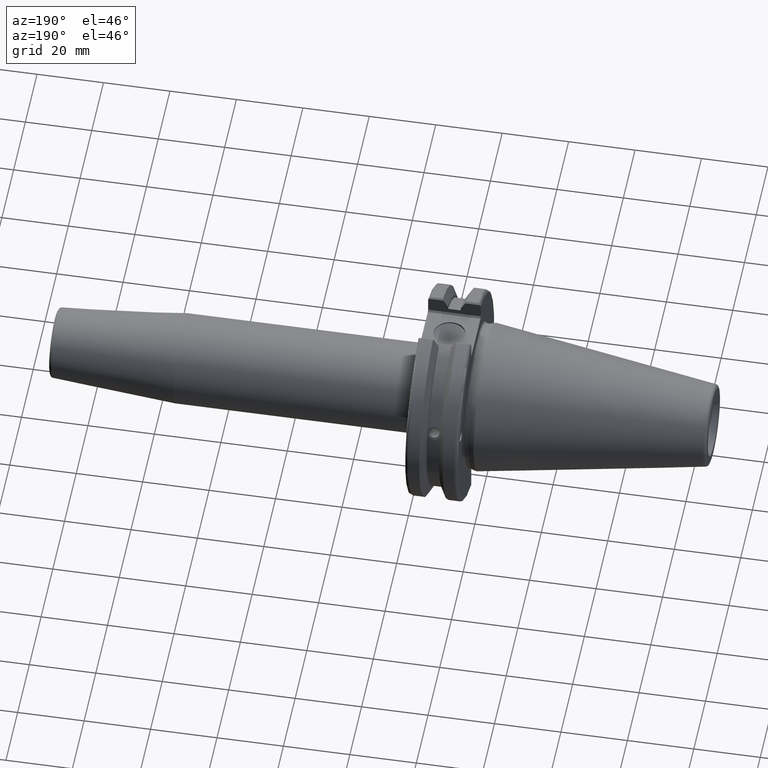
[diagram: clean part render]
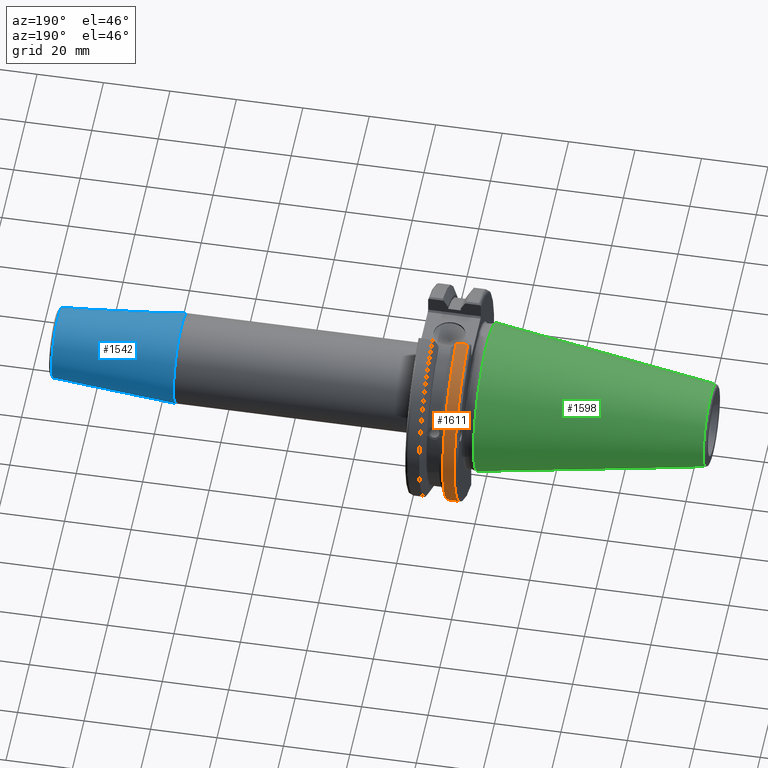
[diagram: same view with three faces highlighted in distinct colors, each labeled with its STEP entity id]
A machine part, auxiliary view with three faces highlighted in distinct colors.
Their STEP definitions:

[orange] entity #1611 — the highlighted cylindrical surface (partial cylindrical patch) has radius 31.75 mm, axis along (1, 0, 0).
#170=CYLINDRICAL_SURFACE('',#1810,31.75);
#250=FACE_OUTER_BOUND('',#357,.T.);
#357=EDGE_LOOP('',(#1450,#1451,#1452,#1453));
#452=LINE('',#3011,#550);
#467=LINE('',#3064,#565);
#550=VECTOR('',#2191,10.);
#565=VECTOR('',#2250,10.);
#608=CIRCLE('',#1742,31.75);
#628=CIRCLE('',#1786,31.75);
#735=VERTEX_POINT('',#2738);
#736=VERTEX_POINT('',#2742);
#787=VERTEX_POINT('',#2985);
#788=VERTEX_POINT('',#2994);
#923=EDGE_CURVE('',#735,#736,#608,.T.);
#1000=EDGE_CURVE('',#787,#788,#628,.T.);
#1003=EDGE_CURVE('',#788,#735,#452,.T.);
#1027=EDGE_CURVE('',#736,#787,#467,.T.);
#1450=ORIENTED_EDGE('',*,*,#1000,.F.);
#1451=ORIENTED_EDGE('',*,*,#1027,.F.);
#1452=ORIENTED_EDGE('',*,*,#923,.F.);
#1453=ORIENTED_EDGE('',*,*,#1003,.F.);
#1611=ADVANCED_FACE('',(#250),#170,.T.);
#1742=AXIS2_PLACEMENT_3D('',#2743,#2065,#2066);
#1786=AXIS2_PLACEMENT_3D('',#2995,#2187,#2188);
#1810=AXIS2_PLACEMENT_3D('',#3065,#2251,#2252);
#2065=DIRECTION('center_axis',(1.,0.,0.));
#2066=DIRECTION('ref_axis',(0.,0.,-1.));
#2187=DIRECTION('center_axis',(-1.,0.,0.));
#2188=DIRECTION('ref_axis',(0.,1.,1.60812264967664E-16));
#2191=DIRECTION('',(1.,0.,0.));
#2250=DIRECTION('',(-1.,0.,0.));
#2251=DIRECTION('center_axis',(1.,0.,0.));
#2252=DIRECTION('ref_axis',(0.,1.,0.));
#2738=CARTESIAN_POINT('',(7.60793323092436,8.67204822802685,-30.5427254764662));
#2742=CARTESIAN_POINT('',(7.60793323092436,8.67204822802685,30.5427254764662));
#2743=CARTESIAN_POINT('Origin',(7.60793323092436,0.,0.));
#2985=CARTESIAN_POINT('',(4.175,8.67204822802685,30.5427254764662));
#2994=CARTESIAN_POINT('',(4.175,8.67204822802685,-30.5427254764662));
#2995=CARTESIAN_POINT('Origin',(4.175,0.,0.));
#3011=CARTESIAN_POINT('',(5.39146661546218,8.67204822802685,-30.5427254764662));
#3064=CARTESIAN_POINT('',(5.39146661546218,8.67204822802685,30.5427254764662));
#3065=CARTESIAN_POINT('Origin',(5.39146661546218,0.,0.));

[blue] entity #1542 — the highlighted conical surface has half-angle 4.5 deg.
#181=FACE_OUTER_BOUND('',#275,.T.);
#275=EDGE_LOOP('',(#1066,#1067,#1068,#1069,#1070));
#379=LINE('',#2340,#477);
#477=VECTOR('',#1874,12.);
#575=CIRCLE('',#1661,10.5725268420749);
#576=CIRCLE('',#1662,10.5725268420749);
#578=CIRCLE('',#1666,13.5);
#653=VERTEX_POINT('',#2330);
#654=VERTEX_POINT('',#2332);
#656=VERTEX_POINT('',#2339);
#814=EDGE_CURVE('',#653,#654,#575,.T.);
#815=EDGE_CURVE('',#654,#653,#576,.T.);
#817=EDGE_CURVE('',#654,#656,#379,.T.);
#818=EDGE_CURVE('',#656,#656,#578,.T.);
#1066=ORIENTED_EDGE('',*,*,#815,.F.);
#1067=ORIENTED_EDGE('',*,*,#817,.T.);
#1068=ORIENTED_EDGE('',*,*,#818,.T.);
#1069=ORIENTED_EDGE('',*,*,#817,.F.);
#1070=ORIENTED_EDGE('',*,*,#814,.F.);
#1523=CONICAL_SURFACE('',#1665,12.,0.0785398163397448);
#1542=ADVANCED_FACE('',(#181),#1523,.T.);
#1661=AXIS2_PLACEMENT_3D('',#2333,#1864,#1865);
#1662=AXIS2_PLACEMENT_3D('',#2334,#1866,#1867);
#1665=AXIS2_PLACEMENT_3D('',#2338,#1872,#1873);
#1666=AXIS2_PLACEMENT_3D('',#2341,#1875,#1876);
#1864=DIRECTION('center_axis',(1.,0.,0.));
#1865=DIRECTION('ref_axis',(0.,-1.,3.06161699786838E-17));
#1866=DIRECTION('center_axis',(1.,0.,0.));
#1867=DIRECTION('ref_axis',(0.,-1.,3.06161699786838E-17));
#1872=DIRECTION('center_axis',(-1.,0.,0.));
#1873=DIRECTION('ref_axis',(0.,1.,0.));
#1874=DIRECTION('',(-0.996917333733128,-0.0784590957278449,-9.6084680447101E-18));
#1875=DIRECTION('center_axis',(1.,0.,0.));
#1876=DIRECTION('ref_axis',(0.,0.,-1.));
#2330=CARTESIAN_POINT('',(129.078459095728,-1.29476111560465E-15,10.5725268420749));
#2332=CARTESIAN_POINT('',(129.078459095728,-10.5725268420749,-1.29476111560465E-15));
#2333=CARTESIAN_POINT('Origin',(129.078459095728,0.,-1.61845139450582E-15));
#2334=CARTESIAN_POINT('Origin',(129.078459095728,0.,-1.61845139450582E-15));
#2338=CARTESIAN_POINT('Origin',(110.940692895738,0.,0.));
#2339=CARTESIAN_POINT('',(91.8813857914758,-13.5,-1.65327317884893E-15));
#2340=CARTESIAN_POINT('',(110.940692895738,-12.,-1.46957615897682E-15));
#2341=CARTESIAN_POINT('Origin',(91.8813857914758,0.,0.));

[green] entity #1598 — the highlighted conical surface has half-angle 8.297 deg.
#237=FACE_OUTER_BOUND('',#344,.T.);
#344=EDGE_LOOP('',(#1389,#1390,#1391,#1392,#1393));
#453=LINE('',#3026,#551);
#551=VECTOR('',#2210,17.2484375);
#629=CIRCLE('',#1789,12.3966635780937);
#630=CIRCLE('',#1790,12.3966635780937);
#634=CIRCLE('',#1796,22.225);
#789=VERTEX_POINT('',#3013);
#790=VERTEX_POINT('',#3014);
#793=VERTEX_POINT('',#3024);
#1004=EDGE_CURVE('',#789,#790,#629,.T.);
#1005=EDGE_CURVE('',#790,#789,#630,.T.);
#1009=EDGE_CURVE('',#793,#793,#634,.T.);
#1010=EDGE_CURVE('',#793,#790,#453,.T.);
#1389=ORIENTED_EDGE('',*,*,#1009,.F.);
#1390=ORIENTED_EDGE('',*,*,#1010,.T.);
#1391=ORIENTED_EDGE('',*,*,#1004,.F.);
#1392=ORIENTED_EDGE('',*,*,#1005,.F.);
#1393=ORIENTED_EDGE('',*,*,#1010,.F.);
#1530=CONICAL_SURFACE('',#1795,17.2484375,0.144812498238939);
#1598=ADVANCED_FACE('',(#237),#1530,.T.);
#1789=AXIS2_PLACEMENT_3D('',#3015,#2194,#2195);
#1790=AXIS2_PLACEMENT_3D('',#3016,#2196,#2197);
#1795=AXIS2_PLACEMENT_3D('',#3023,#2206,#2207);
#1796=AXIS2_PLACEMENT_3D('',#3025,#2208,#2209);
#2194=DIRECTION('center_axis',(-1.,0.,0.));
#2195=DIRECTION('ref_axis',(0.,-1.,3.06161699786838E-17));
#2196=DIRECTION('center_axis',(-1.,0.,0.));
#2197=DIRECTION('ref_axis',(0.,-1.,3.06161699786838E-17));
#2206=DIRECTION('center_axis',(1.,0.,0.));
#2207=DIRECTION('ref_axis',(0.,1.,0.));
#2208=DIRECTION('center_axis',(1.,0.,0.));
#2209=DIRECTION('ref_axis',(0.,0.,-1.));
#2210=DIRECTION('',(-0.989532981063282,0.144306893071729,1.76724974695192E-17));
#3013=CARTESIAN_POINT('',(-67.3943068930717,-1.5181534371019E-15,12.3966635780937));
#3014=CARTESIAN_POINT('',(-67.3943068930718,-12.3966635780937,-1.5181534371019E-15));
#3015=CARTESIAN_POINT('Origin',(-67.3943068930717,0.,-1.89769179637738E-15));
#3016=CARTESIAN_POINT('Origin',(-67.3943068930717,0.,-1.89769179637738E-15));
#3023=CARTESIAN_POINT('Origin',(-34.125,0.,0.));
#3024=CARTESIAN_POINT('',(0.,-22.225,-2.72177751110499E-15));
#3025=CARTESIAN_POINT('Origin',(0.,0.,0.));
#3026=CARTESIAN_POINT('',(-34.125,-17.2484375,-2.11232437746682E-15));